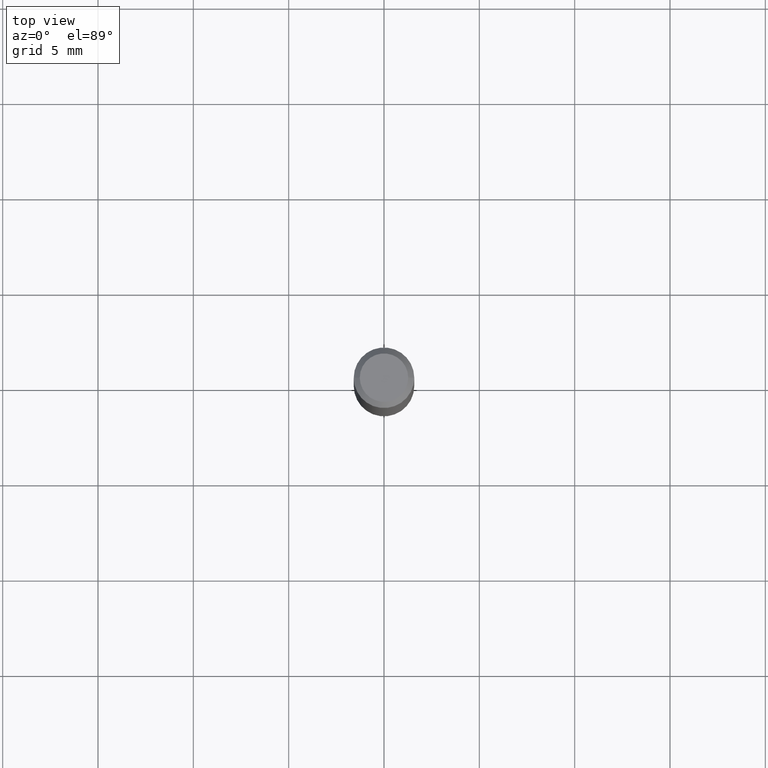
[diagram: clean part render]
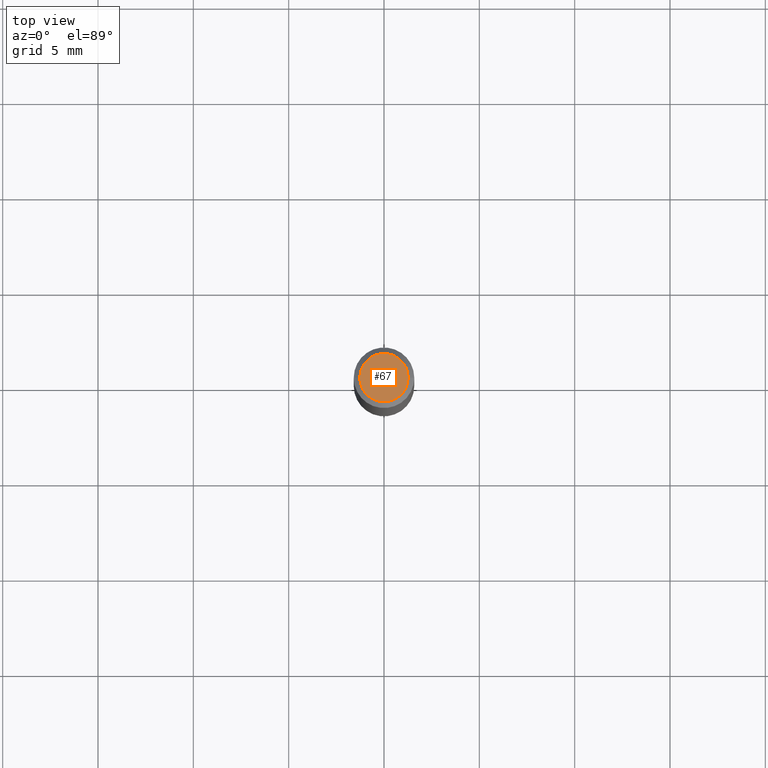
[diagram: same view with one face highlighted and labeled with its STEP entity id]
A machine part, top view. The second image highlights one B-rep face of the part: STEP entity #67.
In plain terms, the highlighted planar face has unit normal (0, -0, -1).
Its self-contained STEP definition (entity closure, byte-faithful):
#33 = AXIS2_PLACEMENT_3D ( 'NONE', #164, #460, #245 ) ;
#49 = EDGE_LOOP ( 'NONE', ( #54, #106 ) ) ;
#54 = ORIENTED_EDGE ( 'NONE', *, *, #171, .T. ) ;
#67 = ADVANCED_FACE ( 'NONE', ( #358 ), #392, .F. ) ;
#68 = DIRECTION ( 'NONE',  ( 1.000000000000000000, -6.982962677686265922E-15, 4.876194921942043128E-29 ) ) ;
#98 = CARTESIAN_POINT ( 'NONE',  ( -4.132873053354867254E-48, 5.900647395337818946E-34, 1.690012582823346072E-19 ) ) ;
#106 = ORIENTED_EDGE ( 'NONE', *, *, #411, .T. ) ;
#126 = VERTEX_POINT ( 'NONE', #354 ) ;
#149 = AXIS2_PLACEMENT_3D ( 'NONE', #98, #169, #469 ) ;
#164 = CARTESIAN_POINT ( 'NONE',  ( -8.265746106709734507E-48, 1.180129479067563789E-33, 3.380025165646692144E-19 ) ) ;
#169 = DIRECTION ( 'NONE',  ( 2.438088387897960049E-29, -3.491481338843145188E-15, -1.000000000000000000 ) ) ;
#171 = EDGE_CURVE ( 'NONE', #264, #126, #456, .T. ) ;
#245 = DIRECTION ( 'NONE',  ( 1.000000000000000000, -6.982962677686265922E-15, 4.876194921942043128E-29 ) ) ;
#264 = VERTEX_POINT ( 'NONE', #423 ) ;
#299 = CARTESIAN_POINT ( 'NONE',  ( -8.265746106709734507E-48, 1.180129479067563789E-33, 3.380025165646692144E-19 ) ) ;
#306 = CIRCLE ( 'NONE', #398, 0.04999999999999999584 ) ;
#354 = CARTESIAN_POINT ( 'NONE',  ( 0.04999999999999999584, -4.077247707424184705E-16, 3.380025165673154903E-19 ) ) ;
#358 = FACE_OUTER_BOUND ( 'NONE', #49, .T. ) ;
#392 = PLANE ( 'NONE',  #149 ) ;
#398 = AXIS2_PLACEMENT_3D ( 'NONE', #299, #441, #68 ) ;
#411 = EDGE_CURVE ( 'NONE', #126, #264, #306, .T. ) ;
#423 = CARTESIAN_POINT ( 'NONE',  ( -0.04999999999999999584, 3.709698922520826725E-16, 3.380025165621512536E-19 ) ) ;
#441 = DIRECTION ( 'NONE',  ( -2.445468806185136597E-29, 3.491481338843145583E-15, 1.000000000000000000 ) ) ;
#456 = CIRCLE ( 'NONE', #33, 0.04999999999999999584 ) ;
#460 = DIRECTION ( 'NONE',  ( -2.445468806185136597E-29, 3.491481338843145583E-15, 1.000000000000000000 ) ) ;
#469 = DIRECTION ( 'NONE',  ( -1.000000000000000000, 6.982962677686265922E-15, -4.876176775795935793E-29 ) ) ;